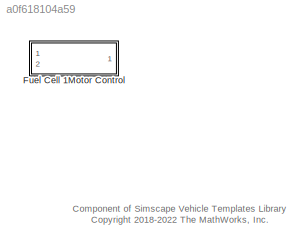
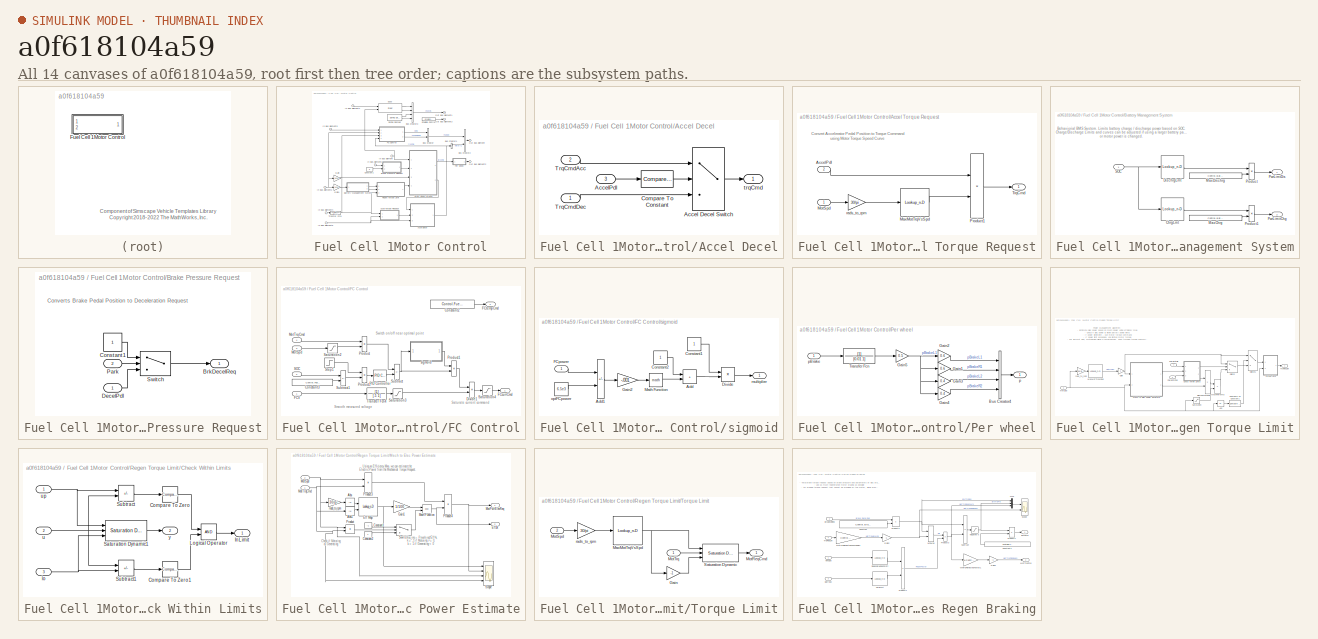
[diagram: thumbnail index - all 14 canvases of the model, root first then tree order]
MODEL slx_a0f618104a59
KIND library
CONFIG AbsTol = auto
CONFIG EnableMultiTasking = off
CONFIG FixedStep = auto
CONFIG MaxStep = auto
CONFIG MinStep = auto
CONFIG RelTol = 1e-3
CONFIG SampleTimeConstraint = Unconstrained
CONFIG SolverName = VariableStepAuto
CONFIG StartTime = 0.0
CONFIG StopTime = 10.0
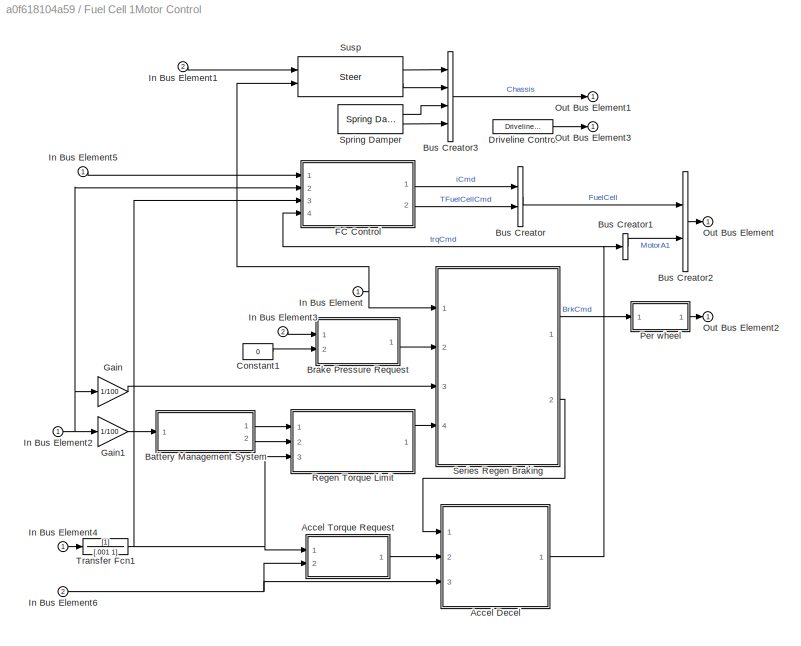
BLOCK [SubSystem] Fuel Cell 1Motor Control
  Ports = [2, 1]
  RequestExecContextInheritance = off
BLOCK [SubSystem] Fuel Cell 1Motor Control/Accel Decel
  Ports = [3, 1]
  RequestExecContextInheritance = off
BLOCK [Switch] Fuel Cell 1Motor Control/Accel Decel/Accel Decel Switch
  Criteria = u2 > Threshold
  InputSameDT = off
  SaturateOnIntegerOverflow = off
BLOCK [Inport] Fuel Cell 1Motor Control/Accel Decel/AccelPdl
  Port = 3
BLOCK [Reference] Fuel Cell 1Motor Control/Accel Decel/Compare To Constant  REF=simulink/Logic and Bit
Operations/Compare
To Constant
  Ports = [1, 1]
  SourceBlock = simulink/Logic and Bit\nOperations/Compare\nTo Constant
  SourceProductBaseCode = SL
  SourceType = Compare To Constant
BLOCK [Inport] Fuel Cell 1Motor Control/Accel Decel/TrqCmdAcc
  Port = 2
BLOCK [Inport] Fuel Cell 1Motor Control/Accel Decel/TrqCmdDec
BLOCK [Outport] Fuel Cell 1Motor Control/Accel Decel/trqCmd
  VectorParamsAs1DForOutWhenUnconnected = off
BLOCK [SubSystem] Fuel Cell 1Motor Control/Accel Torque Request
  Ports = [2, 1]
  RequestExecContextInheritance = off
BLOCK [Inport] Fuel Cell 1Motor Control/Accel Torque Request/AccelPdl
  Port = 2
BLOCK [Lookup_n-D] Fuel Cell 1Motor Control/Accel Torque Request/MaxMotTrqVsSpd
  BreakpointsForDimension1 = Control.MotorA1.TorqueSpd.w.Value %Mot.w_eff_bp_EV_rear
  ExtrapMethod = Clip
  InputPortMap = u0
  InternalRulePriority = Speed
  NumberOfTableDimensions = 1
  OutDataTypeStr = Inherit: Inherit from 'Table data'
  Ports = [1, 1]
  RndMeth = Simplest
  Table = Control.MotorA1.TorqueSpd.trq.Value % Mot.T_t_EV_rear
  UseLastTableValue = on
BLOCK [Inport] Fuel Cell 1Motor Control/Accel Torque Request/MotSpd
BLOCK [Product] Fuel Cell 1Motor Control/Accel Torque Request/Product1
  Ports = [2, 1]
BLOCK [Outport] Fuel Cell 1Motor Control/Accel Torque Request/TrqCmd
  VectorParamsAs1DForOutWhenUnconnected = off
BLOCK [Gain] Fuel Cell 1Motor Control/Accel Torque Request/rads_to_rpm
  Gain = 30/pi
BLOCK [SubSystem] Fuel Cell 1Motor Control/Battery Management System
  Ports = [1, 2]
  RequestExecContextInheritance = off
BLOCK [Lookup_n-D] Fuel Cell 1Motor Control/Battery Management System/ChrgLmt
  BreakpointsForDimension1 = Control.Battery.SOC_bpt
  ExtrapMethod = Clip
  InputPortMap = u0
  InternalRulePriority = Speed
  NumberOfTableDimensions = 1
  Ports = [1, 1]
  RndMeth = Simplest
  Table = Control.Battery.ChrgLmt_bpt
  UseLastTableValue = on
BLOCK [Lookup_n-D] Fuel Cell 1Motor Control/Battery Management System/DischrgLmt
  BreakpointsForDimension1 = Control.Battery.SOC_bpt
  ExtrapMethod = Clip
  InputPortMap = u0
  InternalRulePriority = Speed
  NumberOfTableDimensions = 1
  Ports = [1, 1]
  RndMeth = Simplest
  Table = Control.Battery.DischrgLmt_bpt
  UseLastTableValue = on
BLOCK [Constant] Fuel Cell 1Motor Control/Battery Management System/MaxChrg
  Value = Control.Battery.BattChrgMax
BLOCK [Constant] Fuel Cell 1Motor Control/Battery Management System/MaxDischrg
  Value = Control.Battery.BattDischrgMax
BLOCK [Product] Fuel Cell 1Motor Control/Battery Management System/Product
  Ports = [2, 1]
BLOCK [Product] Fuel Cell 1Motor Control/Battery Management System/Product1
  Ports = [2, 1]
BLOCK [Outport] Fuel Cell 1Motor Control/Battery Management System/PwrLimitChg
  Port = 2
  VectorParamsAs1DForOutWhenUnconnected = off
BLOCK [Outport] Fuel Cell 1Motor Control/Battery Management System/PwrLimtDis
  VectorParamsAs1DForOutWhenUnconnected = off
BLOCK [Inport] Fuel Cell 1Motor Control/Battery Management System/SOC
BLOCK [SubSystem] Fuel Cell 1Motor Control/Brake Pressure Request
  Ports = [2, 1]
  RequestExecContextInheritance = off
BLOCK [Outport] Fuel Cell 1Motor Control/Brake Pressure Request/BrkDecelReq
  VectorParamsAs1DForOutWhenUnconnected = off
BLOCK [Constant] Fuel Cell 1Motor Control/Brake Pressure Request/Constant1
BLOCK [Inport] Fuel Cell 1Motor Control/Brake Pressure Request/DecelPdl
BLOCK [Inport] Fuel Cell 1Motor Control/Brake Pressure Request/Park
  Port = 2
BLOCK [Switch] Fuel Cell 1Motor Control/Brake Pressure Request/Switch
  Criteria = u2 > Threshold
  InputSameDT = off
  SaturateOnIntegerOverflow = off
  ZeroCross = off
BLOCK [BusCreator] Fuel Cell 1Motor Control/Bus Creator
  DisplayOption = bar
  InheritFromInputs = on
  Inputs = 2
  NameLocation = top
  Ports = [2, 1]
BLOCK [BusCreator] Fuel Cell 1Motor Control/Bus Creator1
  DisplayOption = bar
  InheritFromInputs = on
  Inputs = 1
  Ports = [1, 1]
BLOCK [BusCreator] Fuel Cell 1Motor Control/Bus Creator2
  DisplayOption = bar
  InheritFromInputs = on
  Inputs = 2
  Ports = [2, 1]
BLOCK [BusCreator] Fuel Cell 1Motor Control/Bus Creator3
  DisplayOption = bar
  InheritFromInputs = on
  Inputs = 4
  Ports = [4, 1]
BLOCK [Constant] Fuel Cell 1Motor Control/Constant1
  Value = 0
BLOCK [Reference] Fuel Cell 1Motor Control/Driveline Control  REF=sm_car_lib/Control/Driveline Control  (lib defined in slx_05426f0848b6, slx_5dc2867fb1c9)
  Ports = [0, 1]
  SourceBlock = sm_car_lib/Control/Driveline Control
  SourceType = SubSystem
BLOCK [SubSystem] Fuel Cell 1Motor Control/FC Control
  Ports = [4, 2]
  RequestExecContextInheritance = off
BLOCK [Constant] Fuel Cell 1Motor Control/FC Control/Constant2
  Value = Control.FuelCell.tempTgt
BLOCK [Constant] Fuel Cell 1Motor Control/FC Control/Constant3
  Value = Control.FuelCell.SOCtgt
BLOCK [Product] Fuel Cell 1Motor Control/FC Control/Divide1
  Inputs = */
  Ports = [2, 1]
BLOCK [Inport] Fuel Cell 1Motor Control/FC Control/FCV
BLOCK [Outport] Fuel Cell 1Motor Control/FC Control/FCcurrCmd
BLOCK [Outport] Fuel Cell 1Motor Control/FC Control/FCtempCmd
  Port = 2
BLOCK [Inport] Fuel Cell 1Motor Control/FC Control/MotSpd
  Port = 3
BLOCK [Inport] Fuel Cell 1Motor Control/FC Control/MotTrqCmd
  NameLocation = top
  Port = 4
BLOCK [Reference] Fuel Cell 1Motor Control/FC Control/PID Controller  REF=slpidlib/PID Controller
  Ports = [1, 1]
  SourceBlock = slpidlib/PID Controller
  SourceProductBaseCode = SL
  SourceType = PID 1dof
BLOCK [Product] Fuel Cell 1Motor Control/FC Control/Product
  Ports = [2, 1]
BLOCK [Product] Fuel Cell 1Motor Control/FC Control/Product1
  Ports = [2, 1]
BLOCK [Product] Fuel Cell 1Motor Control/FC Control/Product2
  Ports = [2, 1]
BLOCK [Inport] Fuel Cell 1Motor Control/FC Control/SOC
  NameLocation = top
  Port = 2
BLOCK [Saturate] Fuel Cell 1Motor Control/FC Control/Saturation2
  LowerLimit = 1
  UpperLimit = inf
  ZeroCross = off
BLOCK [Saturate] Fuel Cell 1Motor Control/FC Control/Saturation3
  LowerLimit = 200
  UpperLimit = inf
  ZeroCross = off
BLOCK [Saturate] Fuel Cell 1Motor Control/FC Control/Saturation4
  LowerLimit = 0
  UpperLimit = 350
  ZeroCross = off
BLOCK [Step] Fuel Cell 1Motor Control/FC Control/Step1
  SampleTime = 0
BLOCK [Sum] Fuel Cell 1Motor Control/FC Control/Subtract
  IconShape = rectangular
  Inputs = +-
  Ports = [2, 1]
BLOCK [Sum] Fuel Cell 1Motor Control/FC Control/Subtract1
  IconShape = rectangular
  Inputs = +-
  Ports = [2, 1]
BLOCK [TransferFcn] Fuel Cell 1Motor Control/FC Control/Transfer Fcn4
  Denominator = [.5 1]
BLOCK [SubSystem] Fuel Cell 1Motor Control/FC Control/sigmoid
  Ports = [1, 1]
  RequestExecContextInheritance = off
BLOCK [Sum] Fuel Cell 1Motor Control/FC Control/sigmoid/Add
  IconShape = rectangular
  Ports = [2, 1]
BLOCK [Sum] Fuel Cell 1Motor Control/FC Control/sigmoid/Add1
  IconShape = rectangular
  Inputs = +-
  Ports = [2, 1]
BLOCK [Constant] Fuel Cell 1Motor Control/FC Control/sigmoid/Constant1
BLOCK [Constant] Fuel Cell 1Motor Control/FC Control/sigmoid/Constant2
BLOCK [Product] Fuel Cell 1Motor Control/FC Control/sigmoid/Divide
  Inputs = */
  Ports = [2, 1]
BLOCK [Inport] Fuel Cell 1Motor Control/FC Control/sigmoid/FCpower
BLOCK [Gain] Fuel Cell 1Motor Control/FC Control/sigmoid/Gain2
  Gain = -.001
BLOCK [Math] Fuel Cell 1Motor Control/FC Control/sigmoid/Math Function
  Ports = [1, 1]
  SignedPower = on
BLOCK [Outport] Fuel Cell 1Motor Control/FC Control/sigmoid/multiplier
BLOCK [Constant] Fuel Cell 1Motor Control/FC Control/sigmoid/optFCpower
  Value = 6.5e3
BLOCK [Gain] Fuel Cell 1Motor Control/Gain
  Gain = 1/100
BLOCK [Gain] Fuel Cell 1Motor Control/Gain1
  Gain = 1/100
BLOCK [Inport] Fuel Cell 1Motor Control/In Bus Element
BLOCK [Inport] Fuel Cell 1Motor Control/In Bus Element1
  Port = 2
BLOCK [Inport] Fuel Cell 1Motor Control/In Bus Element2
BLOCK [Inport] Fuel Cell 1Motor Control/In Bus Element3
  Port = 2
BLOCK [Inport] Fuel Cell 1Motor Control/In Bus Element4
BLOCK [Inport] Fuel Cell 1Motor Control/In Bus Element5
BLOCK [Inport] Fuel Cell 1Motor Control/In Bus Element6
  Port = 2
BLOCK [Outport] Fuel Cell 1Motor Control/Out Bus Element
BLOCK [Outport] Fuel Cell 1Motor Control/Out Bus Element1
BLOCK [Outport] Fuel Cell 1Motor Control/Out Bus Element2
BLOCK [Outport] Fuel Cell 1Motor Control/Out Bus Element3
BLOCK [SubSystem] Fuel Cell 1Motor Control/Per wheel
  Ports = [1, 1]
  RequestExecContextInheritance = off
BLOCK [BusCreator] Fuel Cell 1Motor Control/Per wheel/Bus Creator4
  DisplayOption = bar
  InheritFromInputs = on
  Inputs = 4
  Ports = [4, 1]
BLOCK [Gain] Fuel Cell 1Motor Control/Per wheel/Gain1
  Gain = 0.6
BLOCK [Gain] Fuel Cell 1Motor Control/Per wheel/Gain2
  Gain = 0.6
BLOCK [Gain] Fuel Cell 1Motor Control/Per wheel/Gain3
  Gain = 0.4
BLOCK [Gain] Fuel Cell 1Motor Control/Per wheel/Gain4
  Gain = 0.4
BLOCK [Gain] Fuel Cell 1Motor Control/Per wheel/Gain5
  Gain = 0.5
BLOCK [TransferFcn] Fuel Cell 1Motor Control/Per wheel/Transfer Fcn
  Denominator = [0.01 1]
BLOCK [Outport] Fuel Cell 1Motor Control/Per wheel/p
  VectorParamsAs1DForOutWhenUnconnected = off
BLOCK [Inport] Fuel Cell 1Motor Control/Per wheel/pBrake
BLOCK [SubSystem] Fuel Cell 1Motor Control/Regen Torque Limit
  Ports = [3, 1]
  RequestExecContextInheritance = off
BLOCK [Abs] Fuel Cell 1Motor Control/Regen Torque Limit/Abs
  SaturateOnIntegerOverflow = off
  ZeroCross = off
BLOCK [SubSystem] Fuel Cell 1Motor Control/Regen Torque Limit/Check Within Limits
  Ports = [3, 2]
  RequestExecContextInheritance = off
BLOCK [Reference] Fuel Cell 1Motor Control/Regen Torque Limit/Check Within Limits/Compare To Zero  REF=simulink/Logic and Bit
Operations/Compare
To Zero
  Ports = [1, 1]
  SourceBlock = simulink/Logic and Bit\nOperations/Compare\nTo Zero
  SourceProductBaseCode = SL
  SourceType = Compare To Zero
BLOCK [Reference] Fuel Cell 1Motor Control/Regen Torque Limit/Check Within Limits/Compare To Zero1  REF=simulink/Logic and Bit
Operations/Compare
To Zero
  Ports = [1, 1]
  SourceBlock = simulink/Logic and Bit\nOperations/Compare\nTo Zero
  SourceProductBaseCode = SL
  SourceType = Compare To Zero
BLOCK [Outport] Fuel Cell 1Motor Control/Regen Torque Limit/Check Within Limits/InLimit
  SampleTime = 0
  VectorParamsAs1DForOutWhenUnconnected = off
BLOCK [Logic] Fuel Cell 1Motor Control/Regen Torque Limit/Check Within Limits/Logical Operator
  AllPortsSameDT = off
  OutDataTypeStr = boolean
  Ports = [2, 1]
BLOCK [Reference] Fuel Cell 1Motor Control/Regen Torque Limit/Check Within Limits/Saturation Dynamic1  REF=simulink/Discontinuities/Saturation
Dynamic
  Ports = [3, 1]
  SourceBlock = simulink/Discontinuities/Saturation\nDynamic
  SourceProductBaseCode = SL
  SourceType = Saturation Dynamic
BLOCK [Sum] Fuel Cell 1Motor Control/Regen Torque Limit/Check Within Limits/Subtract
  IconShape = rectangular
  Inputs = +-
  Ports = [2, 1]
BLOCK [Sum] Fuel Cell 1Motor Control/Regen Torque Limit/Check Within Limits/Subtract1
  IconShape = rectangular
  Inputs = -+
  Ports = [2, 1]
BLOCK [Inport] Fuel Cell 1Motor Control/Regen Torque Limit/Check Within Limits/lo
  Port = 3
BLOCK [Inport] Fuel Cell 1Motor Control/Regen Torque Limit/Check Within Limits/u
  Port = 2
BLOCK [Inport] Fuel Cell 1Motor Control/Regen Torque Limit/Check Within Limits/up
BLOCK [Outport] Fuel Cell 1Motor Control/Regen Torque Limit/Check Within Limits/y
  Port = 2
  VectorParamsAs1DForOutWhenUnconnected = off
BLOCK [Reference] Fuel Cell 1Motor Control/Regen Torque Limit/Compare To Constant1  REF=simulink/Logic and Bit
Operations/Compare
To Constant
  Ports = [1, 1]
  SourceBlock = simulink/Logic and Bit\nOperations/Compare\nTo Constant
  SourceProductBaseCode = SL
  SourceType = Compare To Constant
BLOCK [Product] Fuel Cell 1Motor Control/Regen Torque Limit/ElecToMechPwr
  Inputs = */
  Ports = [2, 1]
BLOCK [Gain] Fuel Cell 1Motor Control/Regen Torque Limit/Gain
  Gain = -1
BLOCK [Lookup_n-D] Fuel Cell 1Motor Control/Regen Torque Limit/MaxMotTrqVsSpd
  BreakpointsForDimension1 = Control.MotorA1.TorqueSpd.w.Value
  ExtrapMethod = Clip
  InputPortMap = u0
  InternalRulePriority = Speed
  NumberOfTableDimensions = 1
  OutDataTypeStr = Inherit: Inherit from 'Table data'
  Ports = [1, 1]
  RndMeth = Simplest
  Table = Control.MotorA1.TorqueSpd.trq.Value
  UseLastTableValue = on
BLOCK [SubSystem] Fuel Cell 1Motor Control/Regen Torque Limit/Mech to Elec Power Estimate
  Ports = [2, 2]
  RequestExecContextInheritance = off
BLOCK [Abs] Fuel Cell 1Motor Control/Regen Torque Limit/Mech to Elec Power Estimate/Abs
  SaturateOnIntegerOverflow = off
  ZeroCross = off
BLOCK [Abs] Fuel Cell 1Motor Control/Regen Torque Limit/Mech to Elec Power Estimate/Abs1
  SaturateOnIntegerOverflow = off
  ZeroCross = off
BLOCK [Constant] Fuel Cell 1Motor Control/Regen Torque Limit/Mech to Elec Power Estimate/Constant1
  SampleTime = 0
  Value = -1
BLOCK [Constant] Fuel Cell 1Motor Control/Regen Torque Limit/Mech to Elec Power Estimate/Constant2
  SampleTime = 0
BLOCK [Lookup_n-D] Fuel Cell 1Motor Control/Regen Torque Limit/Mech to Elec Power Estimate/Eff Map
  BreakpointsForDimension1 = Control.MotorA1.LossTable.w.Value
  BreakpointsForDimension2 = Control.MotorA1.LossTable.trq.Value
  ExtrapMethod = Clip
  InputPortMap = u0,u1
  InternalRulePriority = Speed
  OutDataTypeStr = Inherit: Inherit from 'Table data'
  Ports = [2, 1]
  RndMeth = Simplest
  Table = Control.MotorA1.LossTable.efficiency.Value
  UseLastTableValue = on
BLOCK [Outport] Fuel Cell 1Motor Control/Regen Torque Limit/Mech to Elec Power Estimate/Eff2k
  Port = 2
  VectorParamsAs1DForOutWhenUnconnected = off
BLOCK [Gain] Fuel Cell 1Motor Control/Regen Torque Limit/Mech to Elec Power Estimate/Gain1
  Gain = 1/100
BLOCK [Math] Fuel Cell 1Motor Control/Regen Torque Limit/Mech to Elec Power Estimate/Math Function
  Operator = pow
  OutputSignalType = real
  Ports = [2, 1]
  SignedPower = on
BLOCK [Outport] Fuel Cell 1Motor Control/Regen Torque Limit/Mech to Elec Power Estimate/MotPwrElecReq
  VectorParamsAs1DForOutWhenUnconnected = off
BLOCK [Inport] Fuel Cell 1Motor Control/Regen Torque Limit/Mech to Elec Power Estimate/MotSpd
  Port = 2
BLOCK [Inport] Fuel Cell 1Motor Control/Regen Torque Limit/Mech to Elec Power Estimate/MotTrqCmd
BLOCK [Product] Fuel Cell 1Motor Control/Regen Torque Limit/Mech to Elec Power Estimate/Product
  Ports = [2, 1]
BLOCK [Product] Fuel Cell 1Motor Control/Regen Torque Limit/Mech to Elec Power Estimate/Product3
  Ports = [2, 1]
BLOCK [Product] Fuel Cell 1Motor Control/Regen Torque Limit/Mech to Elec Power Estimate/Product4
  Ports = [2, 1]
BLOCK [Scope] Fuel Cell 1Motor Control/Regen Torque Limit/Mech to Elec Power Estimate/Scope
  Floating = off
  NumInputPorts = 4
  Ports = [4]
  ScopeSpecificationString = Simulink.scopes.TimeScopeBlockCfg('CurrentConfiguration', extmgr.ConfigurationSet(extmgr.Configuration('Core','General UI',true),extmgr.Configuration('Core','Source UI',true),extmgr.Configuration('Sources','WiredSimulink',true,'DataLoggingVariableName','ScopeData2'),extmgr.Configuration('Visuals','Time Domain',true,'SerializedDisplays',{struct('MinYLimReal','84.125','MaxYLimReal','92.875','YLabelR...<+3360ch>
BLOCK [Switch] Fuel Cell 1Motor Control/Regen Torque Limit/Mech to Elec Power Estimate/Switch2
  InputSameDT = off
  SaturateOnIntegerOverflow = off
  ZeroCross = off
BLOCK [Gain] Fuel Cell 1Motor Control/Regen Torque Limit/Mech to Elec Power Estimate/rads_to_rpm
  Gain = 30/pi
  NameLocation = top
BLOCK [Product] Fuel Cell 1Motor Control/Regen Torque Limit/MechPwrToTrq
  Inputs = */
  Ports = [2, 1]
BLOCK [Inport] Fuel Cell 1Motor Control/Regen Torque Limit/MotSpd
  Port = 3
BLOCK [Inport] Fuel Cell 1Motor Control/Regen Torque Limit/PwrLimitChg 
  Port = 2
BLOCK [Inport] Fuel Cell 1Motor Control/Regen Torque Limit/PwrLimitDis
BLOCK [Saturate] Fuel Cell 1Motor Control/Regen Torque Limit/Saturation
  LowerLimit = 2
  UpperLimit = inf
BLOCK [Switch] Fuel Cell 1Motor Control/Regen Torque Limit/Switch
  Criteria = u2 > Threshold
  InputSameDT = off
  SaturateOnIntegerOverflow = off
  ZeroCross = off
BLOCK [Switch] Fuel Cell 1Motor Control/Regen Torque Limit/Switch1
  Criteria = u2 > Threshold
  InputSameDT = off
  SaturateOnIntegerOverflow = off
  ZeroCross = off
BLOCK [SubSystem] Fuel Cell 1Motor Control/Regen Torque Limit/Torque Limit
  Ports = [2, 1]
  RequestExecContextInheritance = off
BLOCK [Gain] Fuel Cell 1Motor Control/Regen Torque Limit/Torque Limit/Gain
  Gain = -1
BLOCK [Lookup_n-D] Fuel Cell 1Motor Control/Regen Torque Limit/Torque Limit/MaxMotTrqVsSpd
  BreakpointsForDimension1 = Control.MotorA1.TorqueSpd.w.Value
  ExtrapMethod = Clip
  InputPortMap = u0
  InternalRulePriority = Speed
  NumberOfTableDimensions = 1
  OutDataTypeStr = Inherit: Inherit from 'Table data'
  Ports = [1, 1]
  RndMeth = Simplest
  Table = Control.MotorA1.TorqueSpd.trq.Value
  UseLastTableValue = on
BLOCK [Outport] Fuel Cell 1Motor Control/Regen Torque Limit/Torque Limit/MotReqCmd
  VectorParamsAs1DForOutWhenUnconnected = off
BLOCK [Inport] Fuel Cell 1Motor Control/Regen Torque Limit/Torque Limit/MotSpd
  Port = 2
BLOCK [Inport] Fuel Cell 1Motor Control/Regen Torque Limit/Torque Limit/MotTrq
BLOCK [Reference] Fuel Cell 1Motor Control/Regen Torque Limit/Torque Limit/Saturation Dynamic  REF=simulink/Discontinuities/Saturation
Dynamic
  Ports = [3, 1]
  SourceBlock = simulink/Discontinuities/Saturation\nDynamic
  SourceProductBaseCode = SL
  SourceType = Saturation Dynamic
BLOCK [Gain] Fuel Cell 1Motor Control/Regen Torque Limit/Torque Limit/rads_to_rpm
  Gain = 30/pi
BLOCK [Outport] Fuel Cell 1Motor Control/Regen Torque Limit/TrqReqLim 
  VectorParamsAs1DForOutWhenUnconnected = off
BLOCK [Gain] Fuel Cell 1Motor Control/Regen Torque Limit/rads_to_rpm
  Gain = 30/pi
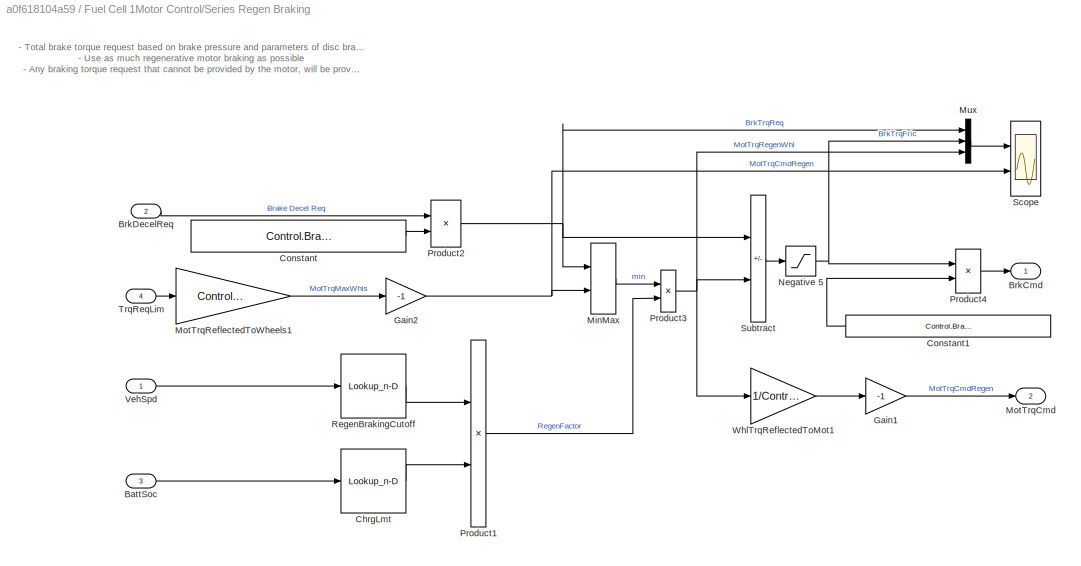
BLOCK [SubSystem] Fuel Cell 1Motor Control/Series Regen Braking
  InitFcn = %[~]=autosharedicon('autolibutils',gcb,0);
  Ports = [4, 2]
  RequestExecContextInheritance = off
  VariantControl = Variant
BLOCK [Outport] Fuel Cell 1Motor Control/Series Regen Braking/ BrkCmd
  VectorParamsAs1DForOutWhenUnconnected = off
BLOCK [Outport] Fuel Cell 1Motor Control/Series Regen Braking/ MotTrqCmd
  Port = 2
  VectorParamsAs1DForOutWhenUnconnected = off
BLOCK [Inport] Fuel Cell 1Motor Control/Series Regen Braking/BattSoc
  Port = 3
BLOCK [Inport] Fuel Cell 1Motor Control/Series Regen Braking/BrkDecelReq
  Port = 2
BLOCK [Lookup_n-D] Fuel Cell 1Motor Control/Series Regen Braking/ChrgLmt
  BreakpointsForDimension1 = Control.Battery.SOC_bpt
  ExtrapMethod = Clip
  InputPortMap = u0
  InternalRulePriority = Speed
  NumberOfTableDimensions = 1
  Ports = [1, 1]
  RndMeth = Simplest
  Table = Control.Battery.ChrgLmt_bpt
  UseLastTableValue = on
BLOCK [Constant] Fuel Cell 1Motor Control/Series Regen Braking/Constant
  Value = Control.Brakes.BrakeTorqueWheelFull.Value
BLOCK [Constant] Fuel Cell 1Motor Control/Series Regen Braking/Constant1
  Value = Control.Brakes.FullTorque2pCaliper.Value
BLOCK [Gain] Fuel Cell 1Motor Control/Series Regen Braking/Gain1
  Gain = -1
BLOCK [Gain] Fuel Cell 1Motor Control/Series Regen Braking/Gain2
  Gain = -1
BLOCK [MinMax] Fuel Cell 1Motor Control/Series Regen Braking/MinMax
  Inputs = 2
  Ports = [2, 1]
BLOCK [Gain] Fuel Cell 1Motor Control/Series Regen Braking/MotTrqReflectedToWheels1
  Gain = Control.Brakes.Ndiff_front
BLOCK [Mux] Fuel Cell 1Motor Control/Series Regen Braking/Mux
  DisplayOption = bar
  Inputs = 3
  Ports = [3, 1]
BLOCK [Saturate] Fuel Cell 1Motor Control/Series Regen Braking/Negative 5
  LowerLimit = 0
  UpperLimit = inf
  ZeroCross = off
BLOCK [Product] Fuel Cell 1Motor Control/Series Regen Braking/Product1
  Ports = [2, 1]
BLOCK [Product] Fuel Cell 1Motor Control/Series Regen Braking/Product2
  Ports = [2, 1]
BLOCK [Product] Fuel Cell 1Motor Control/Series Regen Braking/Product3
  Ports = [2, 1]
BLOCK [Product] Fuel Cell 1Motor Control/Series Regen Braking/Product4
  Inputs = **
  Ports = [2, 1]
BLOCK [Lookup_n-D] Fuel Cell 1Motor Control/Series Regen Braking/RegenBrakingCutoff
  BreakpointsForDimension1 = Control.Power.RegenBrkSpd_bpt
  ExtrapMethod = Clip
  InputPortMap = u0
  InternalRulePriority = Speed
  NumberOfTableDimensions = 1
  Ports = [1, 1]
  RndMeth = Simplest
  Table = Control.Power.RegenBrkCutOff
  UseLastTableValue = on
BLOCK [Scope] Fuel Cell 1Motor Control/Series Regen Braking/Scope
  Floating = off
  NumInputPorts = 2
  Ports = [2]
  ScopeSpecificationString = Simulink.scopes.TimeScopeBlockCfg('CurrentConfiguration', extmgr.ConfigurationSet(extmgr.Configuration('Core','General UI',true),extmgr.Configuration('Core','Source UI',true),extmgr.Configuration('Sources','WiredSimulink',true,'DataLoggingVariableName','ScopeData1'),extmgr.Configuration('Visuals','Time Domain',true,'SerializedDisplays',{struct('MinYLimReal','-294.72625','MaxYLimReal','2652.53625',...<+2044ch>
BLOCK [Sum] Fuel Cell 1Motor Control/Series Regen Braking/Subtract
  IconShape = rectangular
  Inputs = +-
  Ports = [2, 1]
BLOCK [Inport] Fuel Cell 1Motor Control/Series Regen Braking/TrqReqLim
  Port = 4
BLOCK [Inport] Fuel Cell 1Motor Control/Series Regen Braking/VehSpd
BLOCK [Gain] Fuel Cell 1Motor Control/Series Regen Braking/WhlTrqReflectedToMot1
  Gain = 1/Control.Brakes.Ndiff_front
BLOCK [Reference] Fuel Cell 1Motor Control/Spring Damper  REF=sm_car_lib/Inputs/Control Bus/Spring Damper  (lib defined in slx_05426f0848b6, slx_5dc2867fb1c9)
  Ports = [0, 2]
  SourceBlock = sm_car_lib/Inputs/Control Bus/Spring Damper
  SourceType = SubSystem
BLOCK [Reference] Fuel Cell 1Motor Control/Susp  REF=sm_car_lib/Control/Steer  (lib defined in slx_05426f0848b6, slx_5dc2867fb1c9)
  NameLocation = top
  Ports = [2, 2]
  SourceBlock = sm_car_lib/Control/Steer
BLOCK [TransferFcn] Fuel Cell 1Motor Control/Transfer Fcn1
  Denominator = [.001 1]
ANNOTATION (root): Component of Simscape Vehicle Templates Library <copyright redacted>
ANNOTATION Fuel Cell 1Motor Control/Accel Torque Request: Convert Accelerator Pedal Position to Torque Command using Motor Torque Speed Curve
ANNOTATION Fuel Cell 1Motor Control/Battery Management System: Behaviorial BMS System. Limits battery charge / discharge power based on SOC. Charge/Discharge Limits and curves can be adjusted if using a larger battery pack or motor power is changed.
ANNOTATION Fuel Cell 1Motor Control/Brake Pressure Request: Converts Brake Pedal Position to Deceleration Request
ANNOTATION Fuel Cell 1Motor Control/FC Control: Saturate current command
ANNOTATION Fuel Cell 1Motor Control/FC Control: Smooth measured voltage
ANNOTATION Fuel Cell 1Motor Control/FC Control: Switch on/off near optimal point
ANNOTATION Fuel Cell 1Motor Control/Regen Torque Limit: Power Management algorithm: - Estimate Elec power based on mech power using efficiency map - Check if Elec power is within battery power limits - If power within limit , use motor torque command - If power limit exceeded, use limited motor torque - For low Mot Spd, MotPwrReq will be a small number. Pass through torque command until Mot Spd > 2.
ANNOTATION Fuel Cell 1Motor Control/Regen Torque Limit/Mech to Elec Power Estimate: Check if Motoring or Generating
ANNOTATION Fuel Cell 1Motor Control/Regen Torque Limit/Mech to Elec Power Estimate: Pelec_req = Pmech_req*Eff^k, k = -1 if Motoring >= 0, k = 1 if Generating < 0
ANNOTATION Fuel Cell 1Motor Control/Regen Torque Limit/Mech to Elec Power Estimate: Using an Efficiency Map, we can estimate the Electric Power from the Mechanical Torque Request.
ANNOTATION Fuel Cell 1Motor Control/Series Regen Braking: - Total brake torque request based on brake pressure and parameters of disc brakes - Use as much regenerative motor braking as possible - Any braking torque request that cannot be provided by the motor, will be provided by the friction brakes
LINE Fuel Cell 1Motor Control/Accel Decel/Accel Decel Switch:1 -> Fuel Cell 1Motor Control/Accel Decel/trqCmd:1
LINE Fuel Cell 1Motor Control/Accel Decel/AccelPdl:1 -> Fuel Cell 1Motor Control/Accel Decel/Compare To Constant:1
LINE Fuel Cell 1Motor Control/Accel Decel/Compare To Constant:1 -> Fuel Cell 1Motor Control/Accel Decel/Accel Decel Switch:2
LINE Fuel Cell 1Motor Control/Accel Decel/TrqCmdAcc:1 -> Fuel Cell 1Motor Control/Accel Decel/Accel Decel Switch:1
LINE Fuel Cell 1Motor Control/Accel Decel/TrqCmdDec:1 -> Fuel Cell 1Motor Control/Accel Decel/Accel Decel Switch:3
NET Fuel Cell 1Motor Control/Accel Decel:1 -> Fuel Cell 1Motor Control/Bus Creator1:1, Fuel Cell 1Motor Control/FC Control:4
LINE Fuel Cell 1Motor Control/Accel Torque Request/AccelPdl:1 -> Fuel Cell 1Motor Control/Accel Torque Request/Product1:1
LINE Fuel Cell 1Motor Control/Accel Torque Request/MaxMotTrqVsSpd:1 -> Fuel Cell 1Motor Control/Accel Torque Request/Product1:2
LINE Fuel Cell 1Motor Control/Accel Torque Request/MotSpd:1 -> Fuel Cell 1Motor Control/Accel Torque Request/rads_to_rpm:1
LINE Fuel Cell 1Motor Control/Accel Torque Request/Product1:1 -> Fuel Cell 1Motor Control/Accel Torque Request/TrqCmd:1
LINE Fuel Cell 1Motor Control/Accel Torque Request/rads_to_rpm:1 -> Fuel Cell 1Motor Control/Accel Torque Request/MaxMotTrqVsSpd:1
LINE Fuel Cell 1Motor Control/Accel Torque Request:1 -> Fuel Cell 1Motor Control/Accel Decel:2
LINE Fuel Cell 1Motor Control/Battery Management System/ChrgLmt:1 -> Fuel Cell 1Motor Control/Battery Management System/Product1:1
LINE Fuel Cell 1Motor Control/Battery Management System/DischrgLmt:1 -> Fuel Cell 1Motor Control/Battery Management System/Product:1
LINE Fuel Cell 1Motor Control/Battery Management System/MaxChrg:1 -> Fuel Cell 1Motor Control/Battery Management System/Product1:2
LINE Fuel Cell 1Motor Control/Battery Management System/MaxDischrg:1 -> Fuel Cell 1Motor Control/Battery Management System/Product:2
LINE Fuel Cell 1Motor Control/Battery Management System/Product1:1 -> Fuel Cell 1Motor Control/Battery Management System/PwrLimitChg:1
LINE Fuel Cell 1Motor Control/Battery Management System/Product:1 -> Fuel Cell 1Motor Control/Battery Management System/PwrLimtDis:1
NET Fuel Cell 1Motor Control/Battery Management System/SOC:1 -> Fuel Cell 1Motor Control/Battery Management System/ChrgLmt:1, Fuel Cell 1Motor Control/Battery Management System/DischrgLmt:1
LINE Fuel Cell 1Motor Control/Battery Management System:1 -> Fuel Cell 1Motor Control/Regen Torque Limit:1
LINE Fuel Cell 1Motor Control/Battery Management System:2 -> Fuel Cell 1Motor Control/Regen Torque Limit:2
LINE Fuel Cell 1Motor Control/Brake Pressure Request/Constant1:1 -> Fuel Cell 1Motor Control/Brake Pressure Request/Switch:1
LINE Fuel Cell 1Motor Control/Brake Pressure Request/DecelPdl:1 -> Fuel Cell 1Motor Control/Brake Pressure Request/Switch:3
LINE Fuel Cell 1Motor Control/Brake Pressure Request/Park:1 -> Fuel Cell 1Motor Control/Brake Pressure Request/Switch:2
LINE Fuel Cell 1Motor Control/Brake Pressure Request/Switch:1 -> Fuel Cell 1Motor Control/Brake Pressure Request/BrkDecelReq:1
LINE Fuel Cell 1Motor Control/Brake Pressure Request:1 -> Fuel Cell 1Motor Control/Series Regen Braking:2
LINE Fuel Cell 1Motor Control/Bus Creator1:1 -> Fuel Cell 1Motor Control/Bus Creator2:2
LINE Fuel Cell 1Motor Control/Bus Creator2:1 -> Fuel Cell 1Motor Control/Out Bus Element:1
LINE Fuel Cell 1Motor Control/Bus Creator3:1 -> Fuel Cell 1Motor Control/Out Bus Element1:1
LINE Fuel Cell 1Motor Control/Bus Creator:1 -> Fuel Cell 1Motor Control/Bus Creator2:1
LINE Fuel Cell 1Motor Control/Constant1:1 -> Fuel Cell 1Motor Control/Brake Pressure Request:2
LINE Fuel Cell 1Motor Control/Driveline Control:1 -> Fuel Cell 1Motor Control/Out Bus Element3:1
LINE Fuel Cell 1Motor Control/FC Control/Constant2:1 -> Fuel Cell 1Motor Control/FC Control/FCtempCmd:1
LINE Fuel Cell 1Motor Control/FC Control/Constant3:1 -> Fuel Cell 1Motor Control/FC Control/Subtract1:2
LINE Fuel Cell 1Motor Control/FC Control/Divide1:1 -> Fuel Cell 1Motor Control/FC Control/Saturation4:1
LINE Fuel Cell 1Motor Control/FC Control/FCV:1 -> Fuel Cell 1Motor Control/FC Control/Transfer Fcn4:1
LINE Fuel Cell 1Motor Control/FC Control/MotSpd:1 -> Fuel Cell 1Motor Control/FC Control/Saturation2:1
LINE Fuel Cell 1Motor Control/FC Control/MotTrqCmd:1 -> Fuel Cell 1Motor Control/FC Control/Product:1
LINE Fuel Cell 1Motor Control/FC Control/PID Controller:1 -> Fuel Cell 1Motor Control/FC Control/Subtract:2
LINE Fuel Cell 1Motor Control/FC Control/Product1:1 -> Fuel Cell 1Motor Control/FC Control/Divide1:1
LINE Fuel Cell 1Motor Control/FC Control/Product2:1 -> Fuel Cell 1Motor Control/FC Control/PID Controller:1
LINE Fuel Cell 1Motor Control/FC Control/Product:1 -> Fuel Cell 1Motor Control/FC Control/Subtract:1
LINE Fuel Cell 1Motor Control/FC Control/SOC:1 -> Fuel Cell 1Motor Control/FC Control/Subtract1:1
LINE Fuel Cell 1Motor Control/FC Control/Saturation2:1 -> Fuel Cell 1Motor Control/FC Control/Product:2
LINE Fuel Cell 1Motor Control/FC Control/Saturation3:1 -> Fuel Cell 1Motor Control/FC Control/Divide1:2
LINE Fuel Cell 1Motor Control/FC Control/Saturation4:1 -> Fuel Cell 1Motor Control/FC Control/FCcurrCmd:1
LINE Fuel Cell 1Motor Control/FC Control/Step1:1 -> Fuel Cell 1Motor Control/FC Control/Product2:1
LINE Fuel Cell 1Motor Control/FC Control/Subtract1:1 -> Fuel Cell 1Motor Control/FC Control/Product2:2
NET Fuel Cell 1Motor Control/FC Control/Subtract:1 -> Fuel Cell 1Motor Control/FC Control/Product1:2, Fuel Cell 1Motor Control/FC Control/sigmoid:1
LINE Fuel Cell 1Motor Control/FC Control/Transfer Fcn4:1 -> Fuel Cell 1Motor Control/FC Control/Saturation3:1
LINE Fuel Cell 1Motor Control/FC Control/sigmoid/Add1:1 -> Fuel Cell 1Motor Control/FC Control/sigmoid/Gain2:1
LINE Fuel Cell 1Motor Control/FC Control/sigmoid/Add:1 -> Fuel Cell 1Motor Control/FC Control/sigmoid/Divide:2
LINE Fuel Cell 1Motor Control/FC Control/sigmoid/Constant1:1 -> Fuel Cell 1Motor Control/FC Control/sigmoid/Divide:1
LINE Fuel Cell 1Motor Control/FC Control/sigmoid/Constant2:1 -> Fuel Cell 1Motor Control/FC Control/sigmoid/Add:1
LINE Fuel Cell 1Motor Control/FC Control/sigmoid/Divide:1 -> Fuel Cell 1Motor Control/FC Control/sigmoid/multiplier:1
LINE Fuel Cell 1Motor Control/FC Control/sigmoid/FCpower:1 -> Fuel Cell 1Motor Control/FC Control/sigmoid/Add1:1
LINE Fuel Cell 1Motor Control/FC Control/sigmoid/Gain2:1 -> Fuel Cell 1Motor Control/FC Control/sigmoid/Math Function:1
LINE Fuel Cell 1Motor Control/FC Control/sigmoid/Math Function:1 -> Fuel Cell 1Motor Control/FC Control/sigmoid/Add:2
LINE Fuel Cell 1Motor Control/FC Control/sigmoid/optFCpower:1 -> Fuel Cell 1Motor Control/FC Control/sigmoid/Add1:2
LINE Fuel Cell 1Motor Control/FC Control/sigmoid:1 -> Fuel Cell 1Motor Control/FC Control/Product1:1
LINE Fuel Cell 1Motor Control/FC Control:1 -> Fuel Cell 1Motor Control/Bus Creator:1
LINE Fuel Cell 1Motor Control/FC Control:2 -> Fuel Cell 1Motor Control/Bus Creator:2
LINE Fuel Cell 1Motor Control/Gain1:1 -> Fuel Cell 1Motor Control/Battery Management System:1
LINE Fuel Cell 1Motor Control/Gain:1 -> Fuel Cell 1Motor Control/Series Regen Braking:3
LINE Fuel Cell 1Motor Control/In Bus Element1:1 -> Fuel Cell 1Motor Control/Susp:1
NET Fuel Cell 1Motor Control/In Bus Element2:1 -> Fuel Cell 1Motor Control/FC Control:2, Fuel Cell 1Motor Control/Gain1:1, Fuel Cell 1Motor Control/Gain:1
LINE Fuel Cell 1Motor Control/In Bus Element3:1 -> Fuel Cell 1Motor Control/Brake Pressure Request:1
LINE Fuel Cell 1Motor Control/In Bus Element4:1 -> Fuel Cell 1Motor Control/Transfer Fcn1:1
LINE Fuel Cell 1Motor Control/In Bus Element5:1 -> Fuel Cell 1Motor Control/FC Control:1
NET Fuel Cell 1Motor Control/In Bus Element6:1 -> Fuel Cell 1Motor Control/Accel Decel:3, Fuel Cell 1Motor Control/Accel Torque Request:2
NET Fuel Cell 1Motor Control/In Bus Element:1 -> Fuel Cell 1Motor Control/Series Regen Braking:1, Fuel Cell 1Motor Control/Susp:2
LINE Fuel Cell 1Motor Control/Per wheel/Bus Creator4:1 -> Fuel Cell 1Motor Control/Per wheel/p:1
LINE Fuel Cell 1Motor Control/Per wheel/Gain1:1 -> Fuel Cell 1Motor Control/Per wheel/Bus Creator4:2
LINE Fuel Cell 1Motor Control/Per wheel/Gain2:1 -> Fuel Cell 1Motor Control/Per wheel/Bus Creator4:1
LINE Fuel Cell 1Motor Control/Per wheel/Gain3:1 -> Fuel Cell 1Motor Control/Per wheel/Bus Creator4:3
LINE Fuel Cell 1Motor Control/Per wheel/Gain4:1 -> Fuel Cell 1Motor Control/Per wheel/Bus Creator4:4
NET Fuel Cell 1Motor Control/Per wheel/Gain5:1 -> Fuel Cell 1Motor Control/Per wheel/Gain1:1, Fuel Cell 1Motor Control/Per wheel/Gain2:1, Fuel Cell 1Motor Control/Per wheel/Gain3:1, Fuel Cell 1Motor Control/Per wheel/Gain4:1
LINE Fuel Cell 1Motor Control/Per wheel/Transfer Fcn:1 -> Fuel Cell 1Motor Control/Per wheel/Gain5:1
LINE Fuel Cell 1Motor Control/Per wheel/pBrake:1 -> Fuel Cell 1Motor Control/Per wheel/Transfer Fcn:1
LINE Fuel Cell 1Motor Control/Per wheel:1 -> Fuel Cell 1Motor Control/Out Bus Element2:1
LINE Fuel Cell 1Motor Control/Regen Torque Limit/Abs:1 -> Fuel Cell 1Motor Control/Regen Torque Limit/Compare To Constant1:1
LINE Fuel Cell 1Motor Control/Regen Torque Limit/Check Within Limits/Compare To Zero1:1 -> Fuel Cell 1Motor Control/Regen Torque Limit/Check Within Limits/Logical Operator:2
LINE Fuel Cell 1Motor Control/Regen Torque Limit/Check Within Limits/Compare To Zero:1 -> Fuel Cell 1Motor Control/Regen Torque Limit/Check Within Limits/Logical Operator:1
LINE Fuel Cell 1Motor Control/Regen Torque Limit/Check Within Limits/Logical Operator:1 -> Fuel Cell 1Motor Control/Regen Torque Limit/Check Within Limits/InLimit:1
LINE Fuel Cell 1Motor Control/Regen Torque Limit/Check Within Limits/Saturation Dynamic1:1 -> Fuel Cell 1Motor Control/Regen Torque Limit/Check Within Limits/y:1
LINE Fuel Cell 1Motor Control/Regen Torque Limit/Check Within Limits/Subtract1:1 -> Fuel Cell 1Motor Control/Regen Torque Limit/Check Within Limits/Compare To Zero1:1
LINE Fuel Cell 1Motor Control/Regen Torque Limit/Check Within Limits/Subtract:1 -> Fuel Cell 1Motor Control/Regen Torque Limit/Check Within Limits/Compare To Zero:1
NET Fuel Cell 1Motor Control/Regen Torque Limit/Check Within Limits/lo:1 -> Fuel Cell 1Motor Control/Regen Torque Limit/Check Within Limits/Saturation Dynamic1:3, Fuel Cell 1Motor Control/Regen Torque Limit/Check Within Limits/Subtract1:2
NET Fuel Cell 1Motor Control/Regen Torque Limit/Check Within Limits/u:1 -> Fuel Cell 1Motor Control/Regen Torque Limit/Check Within Limits/Saturation Dynamic1:2, Fuel Cell 1Motor Control/Regen Torque Limit/Check Within Limits/Subtract1:1, Fuel Cell 1Motor Control/Regen Torque Limit/Check Within Limits/Subtract:2
NET Fuel Cell 1Motor Control/Regen Torque Limit/Check Within Limits/up:1 -> Fuel Cell 1Motor Control/Regen Torque Limit/Check Within Limits/Saturation Dynamic1:1, Fuel Cell 1Motor Control/Regen Torque Limit/Check Within Limits/Subtract:1
LINE Fuel Cell 1Motor Control/Regen Torque Limit/Check Within Limits:1 -> Fuel Cell 1Motor Control/Regen Torque Limit/Switch:2
LINE Fuel Cell 1Motor Control/Regen Torque Limit/Check Within Limits:2 -> Fuel Cell 1Motor Control/Regen Torque Limit/ElecToMechPwr:1
LINE Fuel Cell 1Motor Control/Regen Torque Limit/Compare To Constant1:1 -> Fuel Cell 1Motor Control/Regen Torque Limit/Switch1:2
LINE Fuel Cell 1Motor Control/Regen Torque Limit/ElecToMechPwr:1 -> Fuel Cell 1Motor Control/Regen Torque Limit/MechPwrToTrq:1
NET Fuel Cell 1Motor Control/Regen Torque Limit/Gain:1 -> Fuel Cell 1Motor Control/Regen Torque Limit/Mech to Elec Power Estimate:1, Fuel Cell 1Motor Control/Regen Torque Limit/Switch1:1, Fuel Cell 1Motor Control/Regen Torque Limit/Switch:1
LINE Fuel Cell 1Motor Control/Regen Torque Limit/MaxMotTrqVsSpd:1 -> Fuel Cell 1Motor Control/Regen Torque Limit/Gain:1
LINE Fuel Cell 1Motor Control/Regen Torque Limit/Mech to Elec Power Estimate/Abs1:1 -> Fuel Cell 1Motor Control/Regen Torque Limit/Mech to Elec Power Estimate/Eff Map:2
LINE Fuel Cell 1Motor Control/Regen Torque Limit/Mech to Elec Power Estimate/Abs:1 -> Fuel Cell 1Motor Control/Regen Torque Limit/Mech to Elec Power Estimate/Eff Map:1
LINE Fuel Cell 1Motor Control/Regen Torque Limit/Mech to Elec Power Estimate/Constant1:1 -> Fuel Cell 1Motor Control/Regen Torque Limit/Mech to Elec Power Estimate/Switch2:1
LINE Fuel Cell 1Motor Control/Regen Torque Limit/Mech to Elec Power Estimate/Constant2:1 -> Fuel Cell 1Motor Control/Regen Torque Limit/Mech to Elec Power Estimate/Switch2:3
NET Fuel Cell 1Motor Control/Regen Torque Limit/Mech to Elec Power Estimate/Eff Map:1 -> Fuel Cell 1Motor Control/Regen Torque Limit/Mech to Elec Power Estimate/Gain1:1, Fuel Cell 1Motor Control/Regen Torque Limit/Mech to Elec Power Estimate/Scope:1
LINE Fuel Cell 1Motor Control/Regen Torque Limit/Mech to Elec Power Estimate/Gain1:1 -> Fuel Cell 1Motor Control/Regen Torque Limit/Mech to Elec Power Estimate/Math Function:1
NET Fuel Cell 1Motor Control/Regen Torque Limit/Mech to Elec Power Estimate/Math Function:1 -> Fuel Cell 1Motor Control/Regen Torque Limit/Mech to Elec Power Estimate/Eff2k:1, Fuel Cell 1Motor Control/Regen Torque Limit/Mech to Elec Power Estimate/Product4:2
NET Fuel Cell 1Motor Control/Regen Torque Limit/Mech to Elec Power Estimate/MotSpd:1 -> Fuel Cell 1Motor Control/Regen Torque Limit/Mech to Elec Power Estimate/Product3:1, Fuel Cell 1Motor Control/Regen Torque Limit/Mech to Elec Power Estimate/Product:1, Fuel Cell 1Motor Control/Regen Torque Limit/Mech to Elec Power Estimate/Scope:3, Fuel Cell 1Motor Control/Regen Torque Limit/Mech to Elec Power Estimate/rads_to_rpm:1
NET Fuel Cell 1Motor Control/Regen Torque Limit/Mech to Elec Power Estimate/MotTrqCmd:1 -> Fuel Cell 1Motor Control/Regen Torque Limit/Mech to Elec Power Estimate/Abs1:1, Fuel Cell 1Motor Control/Regen Torque Limit/Mech to Elec Power Estimate/Product3:2, Fuel Cell 1Motor Control/Regen Torque Limit/Mech to Elec Power Estimate/Product:2, Fuel Cell 1Motor Control/Regen Torque Limit/Mech to Elec Power Estimate/Scope:4
LINE Fuel Cell 1Motor Control/Regen Torque Limit/Mech to Elec Power Estimate/Product3:1 -> Fuel Cell 1Motor Control/Regen Torque Limit/Mech to Elec Power Estimate/Product4:1
NET Fuel Cell 1Motor Control/Regen Torque Limit/Mech to Elec Power Estimate/Product4:1 -> Fuel Cell 1Motor Control/Regen Torque Limit/Mech to Elec Power Estimate/MotPwrElecReq:1, Fuel Cell 1Motor Control/Regen Torque Limit/Mech to Elec Power Estimate/Scope:2
LINE Fuel Cell 1Motor Control/Regen Torque Limit/Mech to Elec Power Estimate/Product:1 -> Fuel Cell 1Motor Control/Regen Torque Limit/Mech to Elec Power Estimate/Switch2:2
LINE Fuel Cell 1Motor Control/Regen Torque Limit/Mech to Elec Power Estimate/Switch2:1 -> Fuel Cell 1Motor Control/Regen Torque Limit/Mech to Elec Power Estimate/Math Function:2
LINE Fuel Cell 1Motor Control/Regen Torque Limit/Mech to Elec Power Estimate/rads_to_rpm:1 -> Fuel Cell 1Motor Control/Regen Torque Limit/Mech to Elec Power Estimate/Abs:1
LINE Fuel Cell 1Motor Control/Regen Torque Limit/Mech to Elec Power Estimate:1 -> Fuel Cell 1Motor Control/Regen Torque Limit/Check Within Limits:2
LINE Fuel Cell 1Motor Control/Regen Torque Limit/Mech to Elec Power Estimate:2 -> Fuel Cell 1Motor Control/Regen Torque Limit/ElecToMechPwr:2
LINE Fuel Cell 1Motor Control/Regen Torque Limit/MechPwrToTrq:1 -> Fuel Cell 1Motor Control/Regen Torque Limit/Switch:3
NET Fuel Cell 1Motor Control/Regen Torque Limit/MotSpd:1 -> Fuel Cell 1Motor Control/Regen Torque Limit/Abs:1, Fuel Cell 1Motor Control/Regen Torque Limit/Mech to Elec Power Estimate:2, Fuel Cell 1Motor Control/Regen Torque Limit/Saturation:1, Fuel Cell 1Motor Control/Regen Torque Limit/Torque Limit:2, Fuel Cell 1Motor Control/Regen Torque Limit/rads_to_rpm:1
LINE Fuel Cell 1Motor Control/Regen Torque Limit/PwrLimitChg :1 -> Fuel Cell 1Motor Control/Regen Torque Limit/Check Within Limits:3
LINE Fuel Cell 1Motor Control/Regen Torque Limit/PwrLimitDis:1 -> Fuel Cell 1Motor Control/Regen Torque Limit/Check Within Limits:1
LINE Fuel Cell 1Motor Control/Regen Torque Limit/Saturation:1 -> Fuel Cell 1Motor Control/Regen Torque Limit/MechPwrToTrq:2
LINE Fuel Cell 1Motor Control/Regen Torque Limit/Switch1:1 -> Fuel Cell 1Motor Control/Regen Torque Limit/Torque Limit:1
LINE Fuel Cell 1Motor Control/Regen Torque Limit/Switch:1 -> Fuel Cell 1Motor Control/Regen Torque Limit/Switch1:3
LINE Fuel Cell 1Motor Control/Regen Torque Limit/Torque Limit/Gain:1 -> Fuel Cell 1Motor Control/Regen Torque Limit/Torque Limit/Saturation Dynamic:3
NET Fuel Cell 1Motor Control/Regen Torque Limit/Torque Limit/MaxMotTrqVsSpd:1 -> Fuel Cell 1Motor Control/Regen Torque Limit/Torque Limit/Gain:1, Fuel Cell 1Motor Control/Regen Torque Limit/Torque Limit/Saturation Dynamic:1
LINE Fuel Cell 1Motor Control/Regen Torque Limit/Torque Limit/MotSpd:1 -> Fuel Cell 1Motor Control/Regen Torque Limit/Torque Limit/rads_to_rpm:1
LINE Fuel Cell 1Motor Control/Regen Torque Limit/Torque Limit/MotTrq:1 -> Fuel Cell 1Motor Control/Regen Torque Limit/Torque Limit/Saturation Dynamic:2
LINE Fuel Cell 1Motor Control/Regen Torque Limit/Torque Limit/Saturation Dynamic:1 -> Fuel Cell 1Motor Control/Regen Torque Limit/Torque Limit/MotReqCmd:1
LINE Fuel Cell 1Motor Control/Regen Torque Limit/Torque Limit/rads_to_rpm:1 -> Fuel Cell 1Motor Control/Regen Torque Limit/Torque Limit/MaxMotTrqVsSpd:1
LINE Fuel Cell 1Motor Control/Regen Torque Limit/Torque Limit:1 -> Fuel Cell 1Motor Control/Regen Torque Limit/TrqReqLim :1
LINE Fuel Cell 1Motor Control/Regen Torque Limit/rads_to_rpm:1 -> Fuel Cell 1Motor Control/Regen Torque Limit/MaxMotTrqVsSpd:1
LINE Fuel Cell 1Motor Control/Regen Torque Limit:1 -> Fuel Cell 1Motor Control/Series Regen Braking:4
LINE Fuel Cell 1Motor Control/Series Regen Braking/BattSoc:1 -> Fuel Cell 1Motor Control/Series Regen Braking/ChrgLmt:1
LINE Fuel Cell 1Motor Control/Series Regen Braking/BrkDecelReq:1 -> Fuel Cell 1Motor Control/Series Regen Braking/Product2:1
LINE Fuel Cell 1Motor Control/Series Regen Braking/ChrgLmt:1 -> Fuel Cell 1Motor Control/Series Regen Braking/Product1:2
LINE Fuel Cell 1Motor Control/Series Regen Braking/Constant1:1 -> Fuel Cell 1Motor Control/Series Regen Braking/Product4:2
LINE Fuel Cell 1Motor Control/Series Regen Braking/Constant:1 -> Fuel Cell 1Motor Control/Series Regen Braking/Product2:2
LINE Fuel Cell 1Motor Control/Series Regen Braking/Gain1:1 -> Fuel Cell 1Motor Control/Series Regen Braking/ MotTrqCmd:1
NET Fuel Cell 1Motor Control/Series Regen Braking/Gain2:1 -> Fuel Cell 1Motor Control/Series Regen Braking/MinMax:2, Fuel Cell 1Motor Control/Series Regen Braking/Scope:2
LINE Fuel Cell 1Motor Control/Series Regen Braking/MinMax:1 -> Fuel Cell 1Motor Control/Series Regen Braking/Product3:1
LINE Fuel Cell 1Motor Control/Series Regen Braking/MotTrqReflectedToWheels1:1 -> Fuel Cell 1Motor Control/Series Regen Braking/Gain2:1
LINE Fuel Cell 1Motor Control/Series Regen Braking/Mux:1 -> Fuel Cell 1Motor Control/Series Regen Braking/Scope:1
NET Fuel Cell 1Motor Control/Series Regen Braking/Negative 5:1 -> Fuel Cell 1Motor Control/Series Regen Braking/Mux:2, Fuel Cell 1Motor Control/Series Regen Braking/Product4:1
LINE Fuel Cell 1Motor Control/Series Regen Braking/Product1:1 -> Fuel Cell 1Motor Control/Series Regen Braking/Product3:2
NET Fuel Cell 1Motor Control/Series Regen Braking/Product2:1 -> Fuel Cell 1Motor Control/Series Regen Braking/MinMax:1, Fuel Cell 1Motor Control/Series Regen Braking/Mux:1, Fuel Cell 1Motor Control/Series Regen Braking/Subtract:1
NET Fuel Cell 1Motor Control/Series Regen Braking/Product3:1 -> Fuel Cell 1Motor Control/Series Regen Braking/Mux:3, Fuel Cell 1Motor Control/Series Regen Braking/Subtract:2, Fuel Cell 1Motor Control/Series Regen Braking/WhlTrqReflectedToMot1:1
LINE Fuel Cell 1Motor Control/Series Regen Braking/Product4:1 -> Fuel Cell 1Motor Control/Series Regen Braking/ BrkCmd:1
LINE Fuel Cell 1Motor Control/Series Regen Braking/RegenBrakingCutoff:1 -> Fuel Cell 1Motor Control/Series Regen Braking/Product1:1
LINE Fuel Cell 1Motor Control/Series Regen Braking/Subtract:1 -> Fuel Cell 1Motor Control/Series Regen Braking/Negative 5:1
LINE Fuel Cell 1Motor Control/Series Regen Braking/TrqReqLim:1 -> Fuel Cell 1Motor Control/Series Regen Braking/MotTrqReflectedToWheels1:1
LINE Fuel Cell 1Motor Control/Series Regen Braking/VehSpd:1 -> Fuel Cell 1Motor Control/Series Regen Braking/RegenBrakingCutoff:1
LINE Fuel Cell 1Motor Control/Series Regen Braking/WhlTrqReflectedToMot1:1 -> Fuel Cell 1Motor Control/Series Regen Braking/Gain1:1
LINE Fuel Cell 1Motor Control/Series Regen Braking:1 -> Fuel Cell 1Motor Control/Per wheel:1
LINE Fuel Cell 1Motor Control/Series Regen Braking:2 -> Fuel Cell 1Motor Control/Accel Decel:1
LINE Fuel Cell 1Motor Control/Spring Damper:1 -> Fuel Cell 1Motor Control/Bus Creator3:3
LINE Fuel Cell 1Motor Control/Spring Damper:2 -> Fuel Cell 1Motor Control/Bus Creator3:4
LINE Fuel Cell 1Motor Control/Susp:1 -> Fuel Cell 1Motor Control/Bus Creator3:1
LINE Fuel Cell 1Motor Control/Susp:2 -> Fuel Cell 1Motor Control/Bus Creator3:2
NET Fuel Cell 1Motor Control/Transfer Fcn1:1 -> Fuel Cell 1Motor Control/Accel Torque Request:1, Fuel Cell 1Motor Control/FC Control:3, Fuel Cell 1Motor Control/Regen Torque Limit:3
note: NET lines group one-source signal fan-out (src -> all destinations, sorted); 1:1 wires keep LINE
